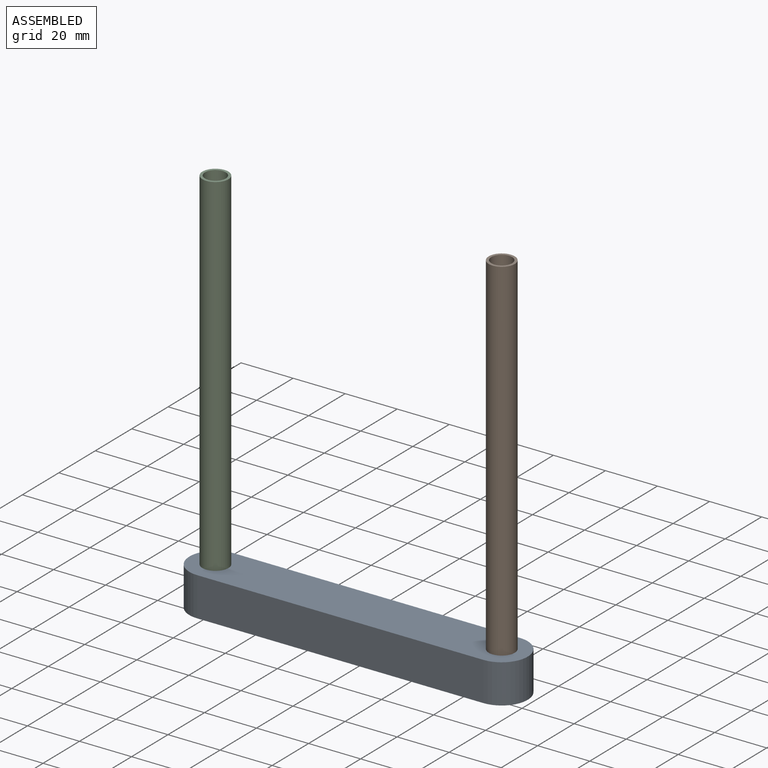
[diagram: assembled view]
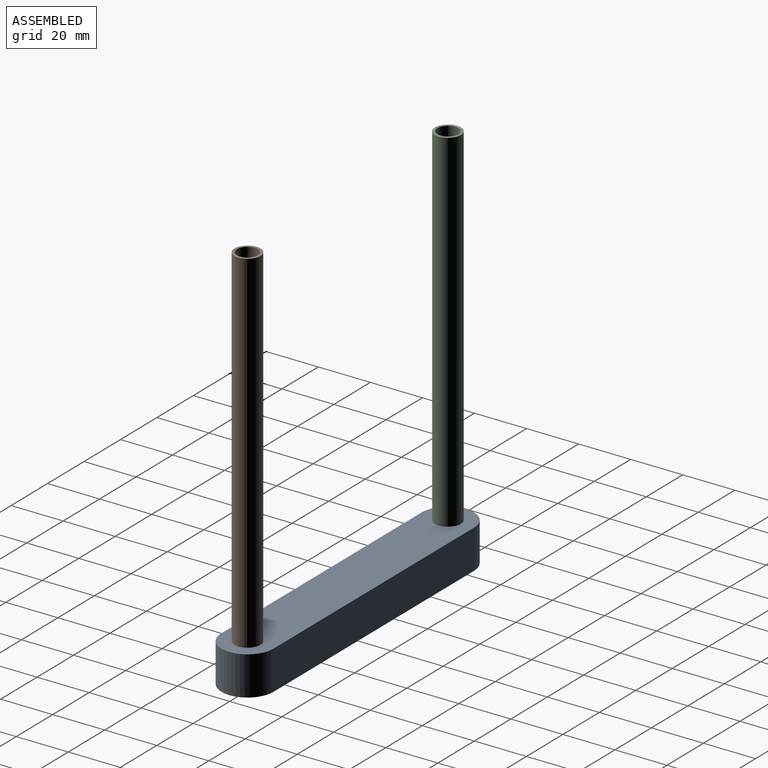
[diagram: assembled view, second angle]
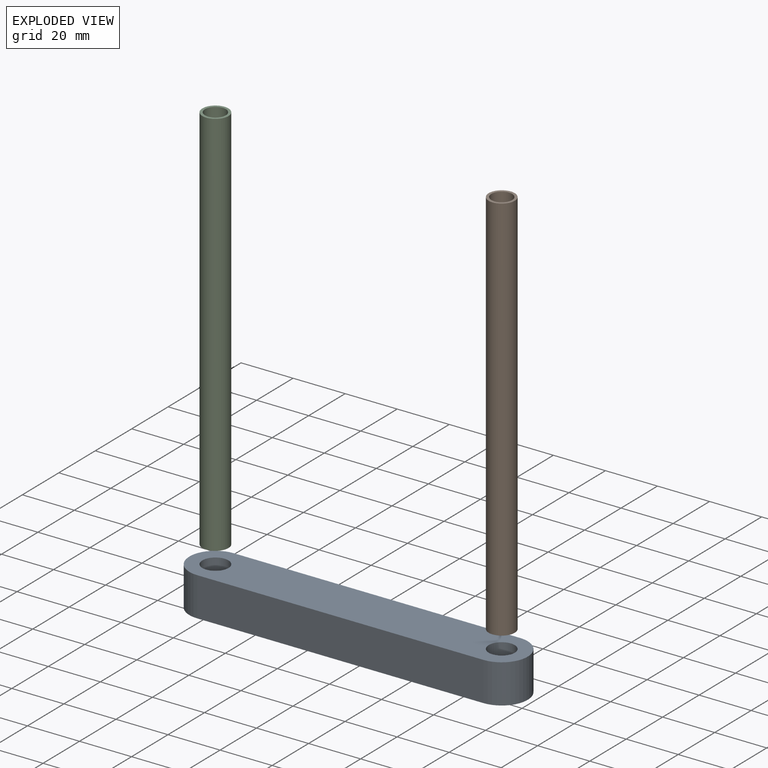
[diagram: exploded view]
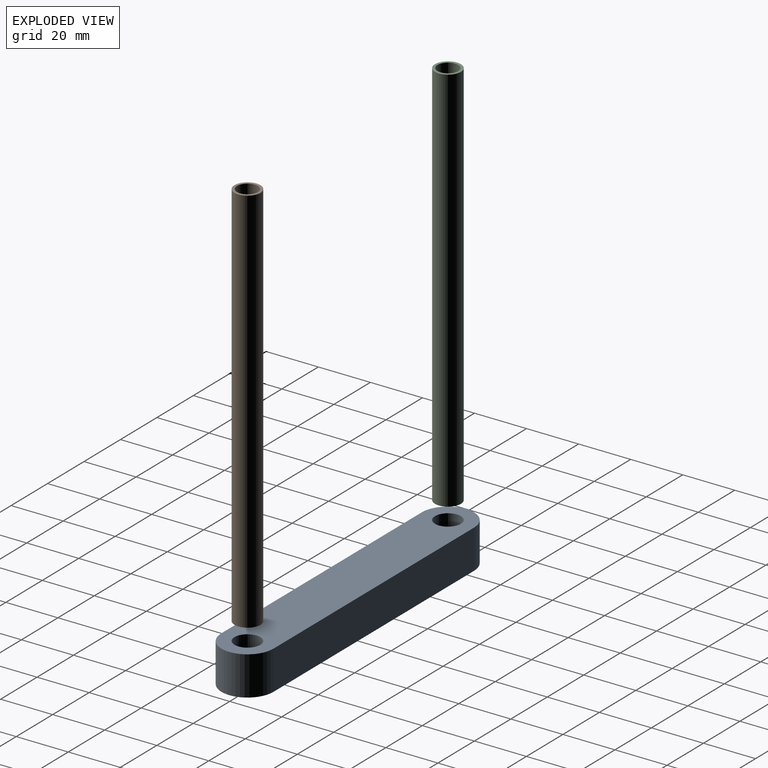
[diagram: exploded view, second angle]
ASSEMBLY  parts=3 mates=2
PART A: 92 faces, bbox 130x20x15 mm
  f0: plane 110x15mm, normal (0,1,0), area 1650mm2, adj f1,f5,f6,f7
  f1: cylinder r=10mm len=20mm, axis (0,0,-1), area 471.2mm2, adj f0,f2,f6,f7
  f2: plane 110x15mm, normal (0,-1,0), area 1650mm2, adj f1,f5,f6,f7
  f3: cylinder r=5mm len=15mm, axis (0,0,-1), area 471.2mm2, adj f6,f7
  f4: cylinder r=5mm len=15mm, axis (0,0,-1), area 471.2mm2, adj f6,f7
  f5: cylinder r=10mm len=20mm, axis (0,0,-1), area 471.2mm2, adj f0,f2,f6,f7
  f6: plane 130x20mm, normal (0,0,1), area 1017.7mm2, adj f0,f1,f2,f3,f4,f5,f8,f9
  f7: plane 130x20mm, normal (0,0,-1), area 2357.1mm2, adj f0,f1,f2,f3,f4,f5
  f8: cylinder r=1mm len=13mm, axis (0,0,1), area 27.2mm2, adj f6,f9,f13,f14
  f9: plane 13.86x13mm, normal (0,1,0), area 180.1mm2, adj f6,f8,f10,f14
  f10: cylinder r=1mm len=13mm, axis (0,0,1), area 27.2mm2, adj f6,f9,f11,f14
  f11: plane 13x12mm, normal (-0.87,-0.5,0), area 180.1mm2, adj f6,f10,f12,f14
  f12: cylinder r=1mm len=13mm, axis (0,0,1), area 27.2mm2, adj f6,f11,f13,f14
  f13: plane 13x12mm, normal (0.87,-0.5,0), area 180.1mm2, adj f6,f8,f12,f14
  f14: plane 15.86x14mm, normal (0,0,1), area 127.8mm2, adj f8,f9,f10,f11,f12,f13
  f15: cylinder r=1mm len=13mm, axis (0,0,1), area 27.2mm2, adj f6,f16,f20,f21
  f16: plane 13x12mm, normal (-0.87,-0.5,0), area 180.1mm2, adj f6,f15,f17,f21
  f17: cylinder r=1mm len=13mm, axis (0,0,1), area 27.2mm2, adj f6,f16,f18,f21
  f18: plane 13x12mm, normal (0.87,-0.5,0), area 180.1mm2, adj f6,f17,f19,f21
  f19: cylinder r=1mm len=13mm, axis (0,0,1), area 27.2mm2, adj f6,f18,f20,f21
  f20: plane 13.86x13mm, normal (0,1,0), area 180.1mm2, adj f6,f15,f19,f21
  f21: plane 15.86x14mm, normal (0,0,1), area 127.8mm2, adj f15,f16,f17,f18,f19,f20
  f22: cylinder r=1mm len=13mm, axis (0,0,1), area 27.2mm2, adj f6,f23,f27,f28
  f23: plane 13.86x13mm, normal (0,-1,0), area 180.1mm2, adj f6,f22,f24,f28
  f24: cylinder r=1mm len=13mm, axis (0,0,1), area 27.2mm2, adj f6,f23,f25,f28
  f25: plane 13x12mm, normal (0.87,0.5,0), area 180.1mm2, adj f6,f24,f26,f28
  f26: cylinder r=1mm len=13mm, axis (0,0,1), area 27.2mm2, adj f6,f25,f27,f28
  f27: plane 13x12mm, normal (-0.87,0.5,0), area 180.1mm2, adj f6,f22,f26,f28
  f28: plane 15.86x14mm, normal (0,0,1), area 127.8mm2, adj f22,f23,f24,f25,f26,f27
  f29: cylinder r=1mm len=13mm, axis (0,0,1), area 27.2mm2, adj f6,f30,f34,f35
  f30: plane 13x12mm, normal (-0.87,-0.5,0), area 180.1mm2, adj f6,f29,f31,f35
  f31: cylinder r=1mm len=13mm, axis (0,0,1), area 27.2mm2, adj f6,f30,f32,f35
  f32: plane 13x12mm, normal (0.87,-0.5,0), area 180.1mm2, adj f6,f31,f33,f35
  f33: cylinder r=1mm len=13mm, axis (0,0,1), area 27.2mm2, adj f6,f32,f34,f35
  f34: plane 13.86x13mm, normal (0,1,0), area 180.1mm2, adj f6,f29,f33,f35
  f35: plane 15.86x14mm, normal (0,0,1), area 127.8mm2, adj f29,f30,f31,f32,f33,f34
  f36: cylinder r=1mm len=13mm, axis (0,0,1), area 27.2mm2, adj f6,f37,f41,f42
  f37: plane 13.86x13mm, normal (0,-1,0), area 180.1mm2, adj f6,f36,f38,f42
  f38: cylinder r=1mm len=13mm, axis (0,0,1), area 27.2mm2, adj f6,f37,f39,f42
  f39: plane 13x12mm, normal (0.87,0.5,0), area 180.1mm2, adj f6,f38,f40,f42
  f40: cylinder r=1mm len=13mm, axis (0,0,1), area 27.2mm2, adj f6,f39,f41,f42
  f41: plane 13x12mm, normal (-0.87,0.5,0), area 180.1mm2, adj f6,f36,f40,f42
  f42: plane 15.86x14mm, normal (0,0,1), area 127.8mm2, adj f36,f37,f38,f39,f40,f41
  f43: cylinder r=1mm len=13mm, axis (0,0,1), area 27.2mm2, adj f6,f44,f48,f49
  f44: plane 13.86x13mm, normal (0,-1,0), area 180.1mm2, adj f6,f43,f45,f49
  f45: cylinder r=1mm len=13mm, axis (0,0,1), area 27.2mm2, adj f6,f44,f46,f49
  f46: plane 13x12mm, normal (0.87,0.5,0), area 180.1mm2, adj f6,f45,f47,f49
  f47: cylinder r=1mm len=13mm, axis (0,0,1), area 27.2mm2, adj f6,f46,f48,f49
  f48: plane 13x12mm, normal (-0.87,0.5,0), area 180.1mm2, adj f6,f43,f47,f49
  f49: plane 15.86x14mm, normal (0,0,1), area 127.8mm2, adj f43,f44,f45,f46,f47,f48
  f50: cylinder r=1mm len=13mm, axis (0,0,1), area 27.2mm2, adj f6,f51,f55,f56
  f51: plane 13.86x13mm, normal (0,-1,0), area 180.1mm2, adj f6,f50,f52,f56
  f52: cylinder r=1mm len=13mm, axis (0,0,1), area 27.2mm2, adj f6,f51,f53,f56
  f53: plane 13x12mm, normal (0.87,0.5,0), area 180.1mm2, adj f6,f52,f54,f56
  f54: cylinder r=1mm len=13mm, axis (0,0,1), area 27.2mm2, adj f6,f53,f55,f56
  f55: plane 13x12mm, normal (-0.87,0.5,0), area 180.1mm2, adj f6,f50,f54,f56
  f56: plane 15.86x14mm, normal (0,0,1), area 127.8mm2, adj f50,f51,f52,f53,f54,f55
  f57: cylinder r=1mm len=13mm, axis (0,0,1), area 27.2mm2, adj f6,f58,f62,f63
  f58: plane 13x12mm, normal (-0.87,-0.5,0), area 180.1mm2, adj f6,f57,f59,f63
  f59: cylinder r=1mm len=13mm, axis (0,0,1), area 27.2mm2, adj f6,f58,f60,f63
  f60: plane 13x12mm, normal (0.87,-0.5,0), area 180.1mm2, adj f6,f59,f61,f63
  f61: cylinder r=1mm len=13mm, axis (0,0,1), area 27.2mm2, adj f6,f60,f62,f63
  f62: plane 13.86x13mm, normal (0,1,0), area 180.1mm2, adj f6,f57,f61,f63
  f63: plane 15.86x14mm, normal (0,0,1), area 127.8mm2, adj f57,f58,f59,f60,f61,f62
  f64: cylinder r=1mm len=13mm, axis (0,0,1), area 27.2mm2, adj f6,f65,f69,f70
  f65: plane 13.86x13mm, normal (0,-1,0), area 180.1mm2, adj f6,f64,f66,f70
  f66: cylinder r=1mm len=13mm, axis (0,0,1), area 27.2mm2, adj f6,f65,f67,f70
  f67: plane 13x12mm, normal (0.87,0.5,0), area 180.1mm2, adj f6,f66,f68,f70
  f68: cylinder r=1mm len=13mm, axis (0,0,1), area 27.2mm2, adj f6,f67,f69,f70
  f69: plane 13x12mm, normal (-0.87,0.5,0), area 180.1mm2, adj f6,f64,f68,f70
  f70: plane 15.86x14mm, normal (0,0,1), area 127.8mm2, adj f64,f65,f66,f67,f68,f69
  f71: cylinder r=1mm len=13mm, axis (0,0,1), area 27.2mm2, adj f6,f72,f76,f77
  f72: plane 13x12mm, normal (-0.87,-0.5,0), area 180.1mm2, adj f6,f71,f73,f77
  f73: cylinder r=1mm len=13mm, axis (0,0,1), area 27.2mm2, adj f6,f72,f74,f77
  f74: plane 13x12mm, normal (0.87,-0.5,0), area 180.1mm2, adj f6,f73,f75,f77
  f75: cylinder r=1mm len=13mm, axis (0,0,1), area 27.2mm2, adj f6,f74,f76,f77
  f76: plane 13.86x13mm, normal (0,1,0), area 180.1mm2, adj f6,f71,f75,f77
  f77: plane 15.86x14mm, normal (0,0,1), area 127.8mm2, adj f71,f72,f73,f74,f75,f76
  f78: plane 13x4.5mm, normal (0.87,-0.5,0), area 67.5mm2, adj f6,f79,f83,f84
  f79: cylinder r=1mm len=13mm, axis (0,0,1), area 27.2mm2, adj f6,f78,f80,f84
  f80: plane 13x5.2mm, normal (0,1,0), area 67.5mm2, adj f6,f79,f81,f84
  f81: cylinder r=1mm len=13mm, axis (0,0,1), area 27.2mm2, adj f6,f80,f82,f84
  f82: plane 13x4.5mm, normal (-0.87,-0.5,0), area 67.5mm2, adj f6,f81,f83,f84
  f83: cylinder r=1mm len=13mm, axis (0,0,1), area 27.2mm2, adj f6,f78,f82,f84
  f84: plane 7.2x6.5mm, normal (0,0,1), area 30.4mm2, adj f78,f79,f80,f81,f82,f83
  f85: cylinder r=1mm len=13mm, axis (0,0,1), area 27.2mm2, adj f6,f86,f90,f91
  f86: plane 13x5.2mm, normal (0,-1,0), area 67.5mm2, adj f6,f85,f87,f91
  f87: cylinder r=1mm len=13mm, axis (0,0,1), area 27.2mm2, adj f6,f86,f88,f91
  f88: plane 13x4.5mm, normal (0.87,0.5,0), area 67.5mm2, adj f6,f87,f89,f91
  f89: cylinder r=1mm len=13mm, axis (0,0,1), area 27.2mm2, adj f6,f88,f90,f91
  f90: plane 13x4.5mm, normal (-0.87,0.5,0), area 67.5mm2, adj f6,f85,f89,f91
  f91: plane 7.2x6.5mm, normal (0,0,1), area 30.4mm2, adj f85,f86,f87,f88,f89,f90
PART B: 4 faces, bbox 10x10x150 mm
  f0: cylinder r=4mm len=150mm, axis (0,0,-1), area 3769.9mm2, adj f2,f3
  f1: cylinder r=5mm len=150mm, axis (0,0,-1), area 4712.4mm2, adj f2,f3
  f2: plane 10x10mm, normal (0,0,1), area 28.3mm2, adj f0,f1
  f3: plane 10x10mm, normal (0,0,-1), area 28.3mm2, adj f0,f1
PART C: same geometry as B
PLACE A rot(axis=(1,0,0),180deg) t=(21.56,0.92,8.25)mm
PLACE B t=(131.56,0.92,-6.75)mm
PLACE C t=(21.56,0.92,-6.75)mm
MATE revolute A.f3 <-> C.f0  axis (0,0,1) through (21.56,0.92,-6.75)mm
MATE revolute B.f1 <-> A.f4  axis (0,0,-1) through (131.56,0.92,-6.75)mm
